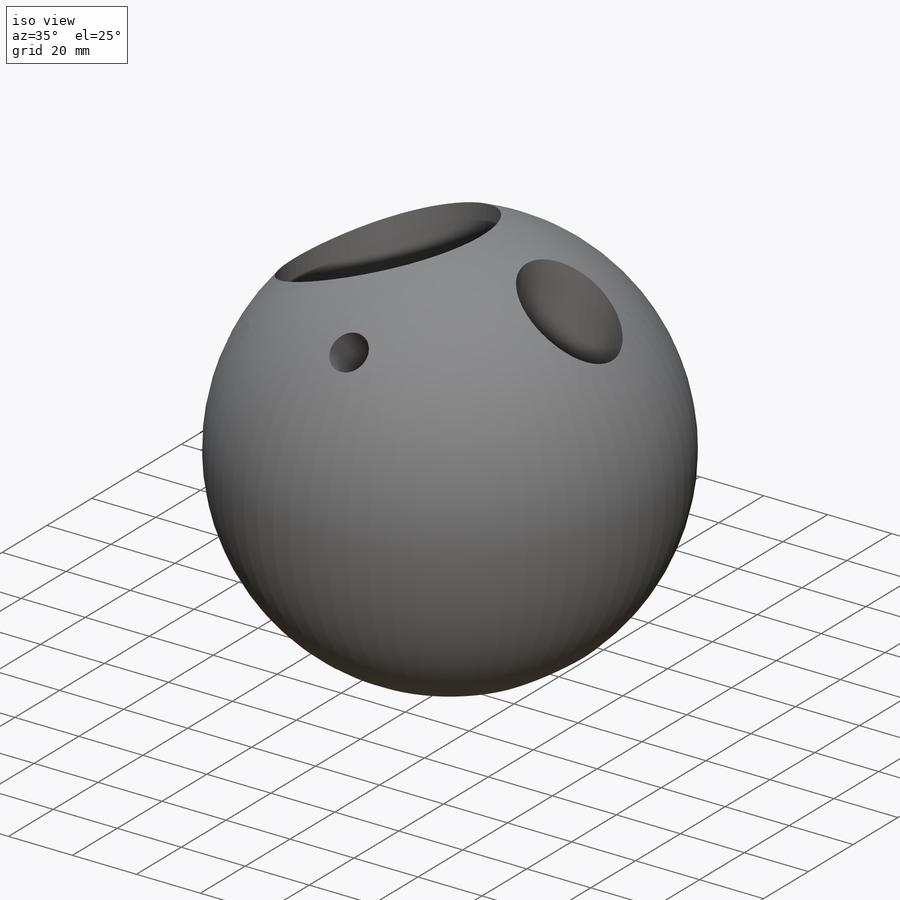
[diagram: iso view]
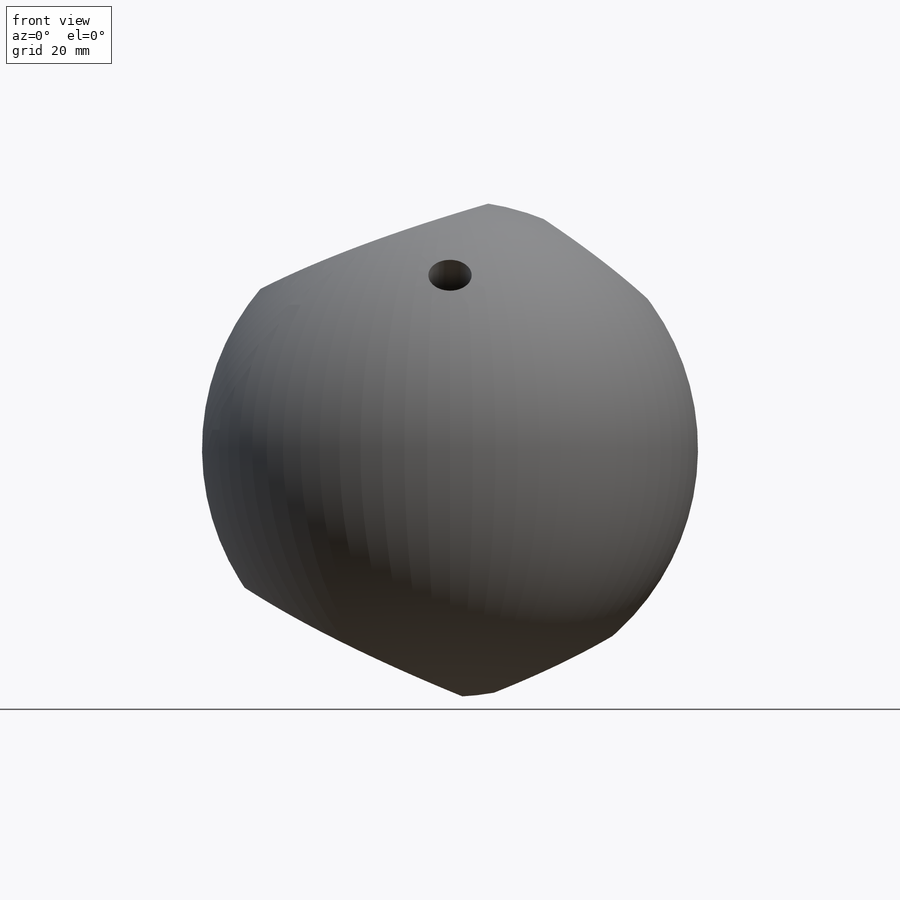
[diagram: front view]
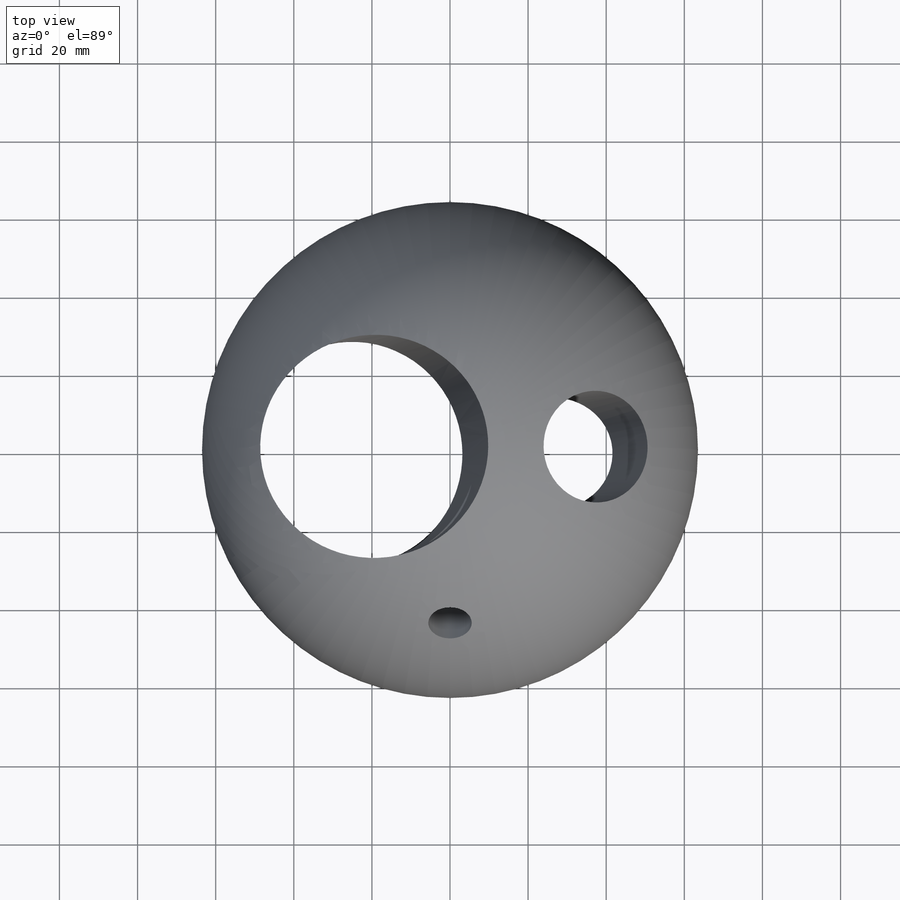
[diagram: top view]
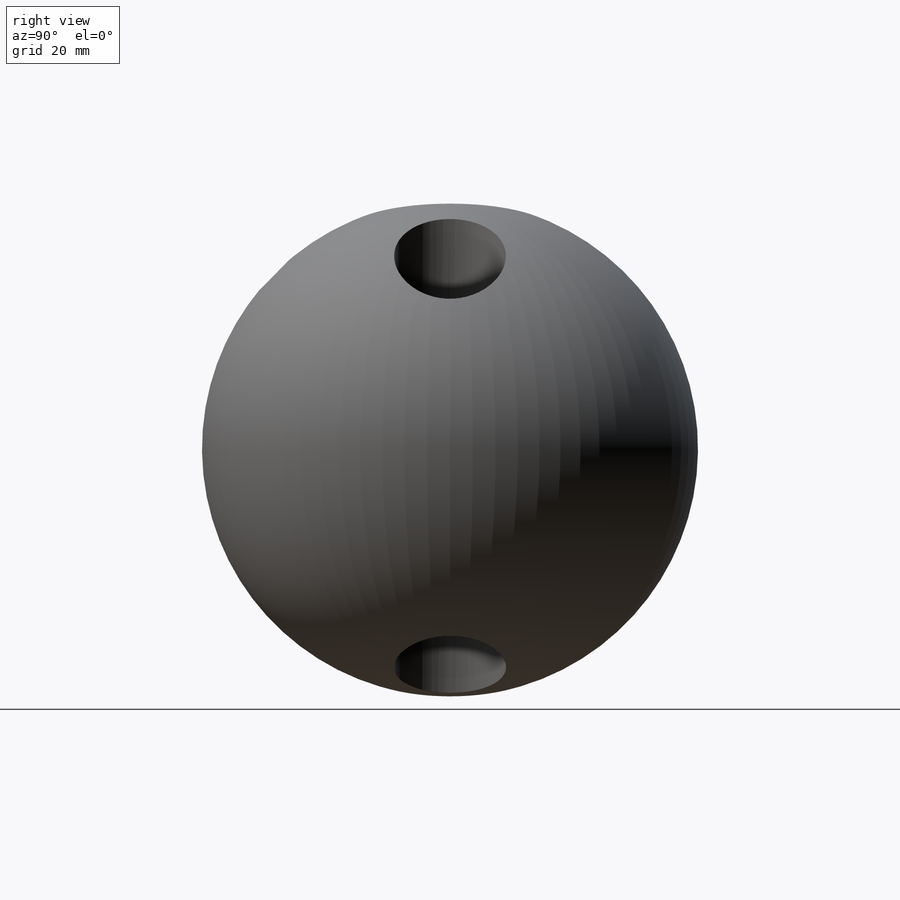
[diagram: right view]
SOLIDWORKS PART (.sldprt)
format: sldprt  version: not decoded by parser v0  size: 268,288 bytes
history: native  units: mm
features: sketch x4, cut_revolve x3, material x1, revolve x1 (+11 scaffold rows collapsed)
feature tree (20):
  scaffold x11  (default folders/planes/origin — collapsed)
  material  "Material <not specified>"
  sketch  "Sketch1"  dims[D1=63.5mm]
  revolve  "Revolve1"  Angle=360deg
  sketch  "Sketch2"  dims[c1.D1=3.175mm c1.D2=7.9375mm c1.D3=~126.920575mm c2.D3=6.0deg c2.D4=14.2875mm]
  cut_revolve  "Cut-Revolve1"  Angle=360deg
  sketch  "Sketch4"  dims[c1.D1=3.175mm c1.D2=~126.84125mm c2.D2=~6.004328deg c2.D3=12.7mm c2.D4=14.2875mm c3.D3=7.9375mm c3.D4=17.4625mm c3.D2=127.0mm c4.D2=177.0deg c4.D4=~45.798184mm c5.D4=7.0deg c5.D5=12.7mm c5.D6=~31.75347mm c6.D6=7.0deg c6.D5=57.1408mm c6.D7=~76.623998mm c7.D5=28.575mm c7.D8=~49.333219mm c8.D8=3.0deg c8.D9=~68.311102mm c9.D9=7.0deg c10.D9=~47.685051mm c11.D9=3.0deg c11.D10=~28.614215mm]
  cut_revolve  "Cut-Revolve2"  Angle=360deg
  sketch  "Sketch13"  dims[c1.D1=25.4mm c1.D2=~45.06396mm c2.D2=~45.031526deg c2.D3=63.5mm c2.D4=~5.55625mm c2.D5=~45.06396mm c3.D5=135.0deg c4.D5=~7.857724mm]
  cut_revolve  "Cut-Revolve3"  Angle=360deg
decode coverage: 8 of 8 modeling features carry decoded parameters
note: ~ marks probable driven/reference dimensions
note: suppression state not decoded; provenance and decode notes live in map.json
